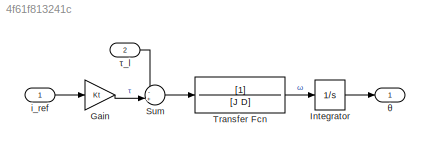
MODEL slx_4f61f813241c
KIND model
CONFIG AbsTol = auto
CONFIG EnableMultiTasking = off
CONFIG FixedStep = auto
CONFIG MaxStep = auto
CONFIG MinStep = auto
CONFIG RelTol = 1e-3
CONFIG SampleTimeConstraint = Unconstrained
CONFIG Solver = VariableStepAuto
CONFIG SolverName = VariableStepAuto
CONFIG StartTime = 0.0
CONFIG StopTime = 10.0
BLOCK [Gain] Gain
  Gain = Kt
  OutDataTypeStr = Inherit: Inherit via internal rule
  ParamDataTypeStr = Inherit: Inherit via internal rule
  SaturateOnIntegerOverflow = off
BLOCK [Integrator] Integrator
  Ports = [1, 1]
BLOCK [Sum] Sum
  IconShape = round
  InputSameDT = off
  Inputs = -+|
  OutDataTypeStr = Inherit: Inherit via internal rule
  Ports = [2, 1]
  SaturateOnIntegerOverflow = off
BLOCK [TransferFcn] Transfer Fcn
  Denominator = [J D]
BLOCK [Inport] i_ref
  IconDisplay = Port number
BLOCK [Outport] θ
  IconDisplay = Port number
BLOCK [Inport] τ_l
  IconDisplay = Port number
  Port = 2
LINE Gain:1 -> Sum:2
LINE Integrator:1 -> θ:1
LINE Sum:1 -> Transfer Fcn:1
LINE Transfer Fcn:1 -> Integrator:1
LINE i_ref:1 -> Gain:1
LINE τ_l:1 -> Sum:1
